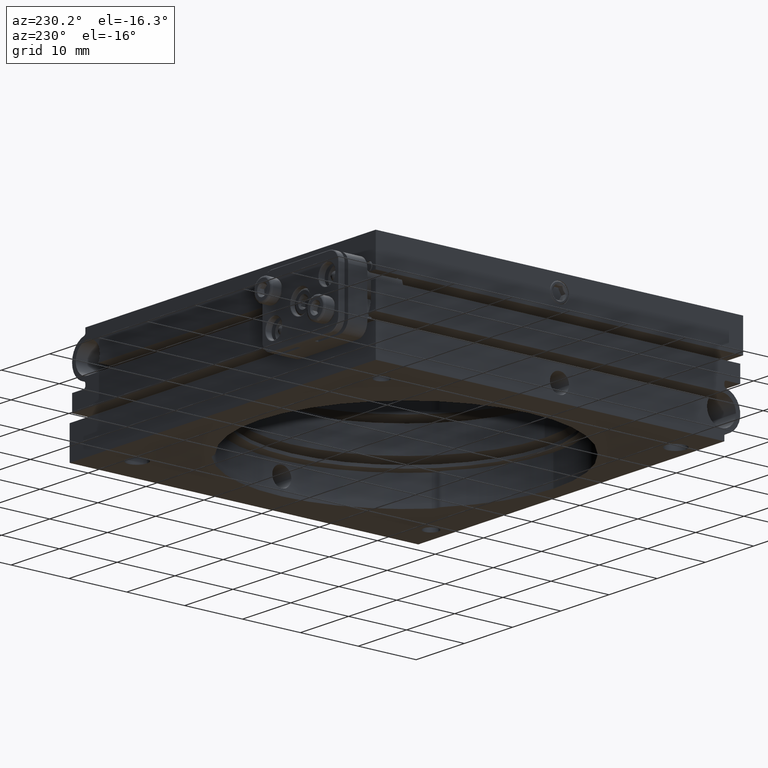
[diagram: clean part render]
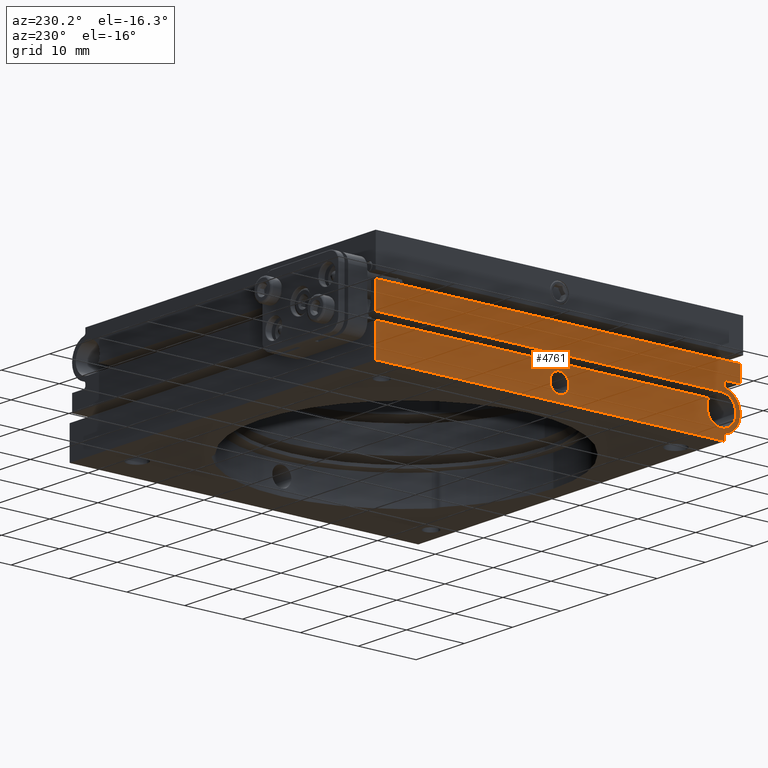
[diagram: same view with one face highlighted and labeled with its STEP entity id]
A machine part, auxiliary view. The second image highlights one B-rep face of the part: STEP entity #4761.
In plain terms, the highlighted planar face has unit normal (1, -0, 0).
Its self-contained STEP definition (entity closure, byte-faithful):
#7 = CARTESIAN_POINT ( 'NONE',  ( -31.75000000000000711, -28.00000000000000000, -4.749999999999997335 ) ) ;
#29 = VERTEX_POINT ( 'NONE', #2313 ) ;
#43 = ORIENTED_EDGE ( 'NONE', *, *, #897, .T. ) ;
#108 = ORIENTED_EDGE ( 'NONE', *, *, #5373, .F. ) ;
#119 = VERTEX_POINT ( 'NONE', #6999 ) ;
#173 = DIRECTION ( 'NONE',  ( 1.000000000000000000, -5.551115123125782702E-17, 1.232595164407830946E-32 ) ) ;
#184 = CARTESIAN_POINT ( 'NONE',  ( -31.74999999999999289, 31.74999999999999289, 8.999999999999998224 ) ) ;
#223 = CARTESIAN_POINT ( 'NONE',  ( -31.75000000000000711, -28.85000000000000142, -8.248213829942356412 ) ) ;
#225 = VECTOR ( 'NONE', #1728, 1000.000000000000000 ) ;
#333 = ORIENTED_EDGE ( 'NONE', *, *, #969, .F. ) ;
#343 = AXIS2_PLACEMENT_3D ( 'NONE', #7897, #6374, #4968 ) ;
#363 = VERTEX_POINT ( 'NONE', #571 ) ;
#397 = VERTEX_POINT ( 'NONE', #4612 ) ;
#399 = ORIENTED_EDGE ( 'NONE', *, *, #4271, .T. ) ;
#414 = CARTESIAN_POINT ( 'NONE',  ( -31.75000000000000711, -28.00000000000000000, -4.749999999999997335 ) ) ;
#476 = EDGE_CURVE ( 'NONE', #975, #839, #4586, .T. ) ;
#559 = CIRCLE ( 'NONE', #3498, 0.3499999999999996447 ) ;
#571 = CARTESIAN_POINT ( 'NONE',  ( -31.75000000000000711, -28.50000000000000000, -8.248213829942356412 ) ) ;
#598 = EDGE_CURVE ( 'NONE', #6316, #3121, #2462, .T. ) ;
#641 = ORIENTED_EDGE ( 'NONE', *, *, #6278, .F. ) ;
#651 = DIRECTION ( 'NONE',  ( 1.665334536937734811E-16, 1.000000000000000000, 0.000000000000000000 ) ) ;
#688 = CARTESIAN_POINT ( 'NONE',  ( -31.74999999999999289, 31.74999999999999289, 8.999999999999998224 ) ) ;
#711 = CARTESIAN_POINT ( 'NONE',  ( -31.75000000000000000, 1.649999999999995914, -6.249999999999998224 ) ) ;
#729 = AXIS2_PLACEMENT_3D ( 'NONE', #223, #173, #9471 ) ;
#731 = EDGE_CURVE ( 'NONE', #8923, #9159, #8302, .T. ) ;
#775 = CARTESIAN_POINT ( 'NONE',  ( -31.74999999999999289, 31.74999999999999289, -3.500000000000001332 ) ) ;
#839 = VERTEX_POINT ( 'NONE', #711 ) ;
#844 = DIRECTION ( 'NONE',  ( 1.665334536937734811E-16, 1.000000000000000000, 0.000000000000000000 ) ) ;
#859 = CARTESIAN_POINT ( 'NONE',  ( -31.75000000000000711, -28.00000000000000000, -4.749999999999997335 ) ) ;
#897 = EDGE_CURVE ( 'NONE', #9127, #363, #4181, .T. ) ;
#946 = VECTOR ( 'NONE', #8866, 1000.000000000000000 ) ;
#957 = DIRECTION ( 'NONE',  ( 0.000000000000000000, 1.000000000000000000, 0.000000000000000000 ) ) ;
#961 = CARTESIAN_POINT ( 'NONE',  ( -31.75000000000000711, -31.24999999999999289, 8.999999999999998224 ) ) ;
#969 = EDGE_CURVE ( 'NONE', #4498, #397, #7934, .T. ) ;
#975 = VERTEX_POINT ( 'NONE', #7167 ) ;
#1009 = DIRECTION ( 'NONE',  ( -1.000000000000000000, 5.551115123125782702E-17, -1.232595164407830946E-32 ) ) ;
#1287 = EDGE_LOOP ( 'NONE', ( #6902, #3081 ) ) ;
#1470 = VERTEX_POINT ( 'NONE', #5137 ) ;
#1486 = LINE ( 'NONE', #775, #8395 ) ;
#1511 = ORIENTED_EDGE ( 'NONE', *, *, #9239, .T. ) ;
#1528 = CARTESIAN_POINT ( 'NONE',  ( -31.75000000000000711, -28.50000000000000000, -1.538691855333715441 ) ) ;
#1607 = PLANE ( 'NONE',  #2078 ) ;
#1608 = AXIS2_PLACEMENT_3D ( 'NONE', #859, #1009, #957 ) ;
#1655 = FACE_BOUND ( 'NONE', #1287, .T. ) ;
#1719 = CARTESIAN_POINT ( 'NONE',  ( -31.75000000000000000, -25.83493649053891161, -3.499999999999998668 ) ) ;
#1728 = DIRECTION ( 'NONE',  ( 3.081487911019576681E-33, 5.551115123125781470E-17, 1.000000000000000000 ) ) ;
#1800 = AXIS2_PLACEMENT_3D ( 'NONE', #414, #2807, #7575 ) ;
#1917 = CARTESIAN_POINT ( 'NONE',  ( -31.75000000000000711, -28.50000000000000000, -1.251786170057636927 ) ) ;
#2078 = AXIS2_PLACEMENT_3D ( 'NONE', #184, #9240, #844 ) ;
#2124 = VERTEX_POINT ( 'NONE', #7463 ) ;
#2197 = DIRECTION ( 'NONE',  ( -1.848892746611746419E-32, 3.079024946026209384E-48, 1.000000000000000000 ) ) ;
#2247 = LINE ( 'NONE', #3835, #8993 ) ;
#2273 = LINE ( 'NONE', #688, #9785 ) ;
#2313 = CARTESIAN_POINT ( 'NONE',  ( -31.74999999999999289, 31.75000000000000000, -9.000000000000000000 ) ) ;
#2412 = CARTESIAN_POINT ( 'NONE',  ( -31.75000000000000000, 31.75000000000000000, -3.500000000000001332 ) ) ;
#2432 = ORIENTED_EDGE ( 'NONE', *, *, #3113, .T. ) ;
#2462 = CIRCLE ( 'NONE', #1800, 2.499999999999995115 ) ;
#2527 = LINE ( 'NONE', #4002, #5597 ) ;
#2657 = LINE ( 'NONE', #5769, #3546 ) ;
#2671 = LINE ( 'NONE', #3433, #946 ) ;
#2730 = EDGE_CURVE ( 'NONE', #9700, #6377, #7369, .T. ) ;
#2761 = EDGE_CURVE ( 'NONE', #9127, #29, #2527, .T. ) ;
#2807 = DIRECTION ( 'NONE',  ( -1.000000000000000000, 5.551115123125782702E-17, -1.232595164407830946E-32 ) ) ;
#2882 = EDGE_CURVE ( 'NONE', #2124, #9415, #2247, .T. ) ;
#3004 = CARTESIAN_POINT ( 'NONE',  ( -31.75000000000000711, -28.85000000000000142, -1.251786170057636927 ) ) ;
#3081 = ORIENTED_EDGE ( 'NONE', *, *, #3545, .F. ) ;
#3113 = EDGE_CURVE ( 'NONE', #3643, #119, #8697, .T. ) ;
#3121 = VERTEX_POINT ( 'NONE', #3263 ) ;
#3209 = DIRECTION ( 'NONE',  ( 3.081487911019576681E-33, 5.551115123125781470E-17, 1.000000000000000000 ) ) ;
#3238 = DIRECTION ( 'NONE',  ( 1.665334536937734811E-16, 1.000000000000000000, 0.000000000000000000 ) ) ;
#3263 = CARTESIAN_POINT ( 'NONE',  ( -31.75000000000000000, -27.99999999999999645, -2.249999999999998668 ) ) ;
#3406 = VECTOR ( 'NONE', #651, 1000.000000000000000 ) ;
#3433 = CARTESIAN_POINT ( 'NONE',  ( -31.74999999999999289, 31.74999999999999289, -0.5499999999999983791 ) ) ;
#3498 = AXIS2_PLACEMENT_3D ( 'NONE', #6260, #4748, #9353 ) ;
#3516 = ORIENTED_EDGE ( 'NONE', *, *, #7540, .F. ) ;
#3545 = EDGE_CURVE ( 'NONE', #839, #975, #7801, .T. ) ;
#3546 = VECTOR ( 'NONE', #7328, 1000.000000000000000 ) ;
#3643 = VERTEX_POINT ( 'NONE', #1917 ) ;
#3835 = CARTESIAN_POINT ( 'NONE',  ( -31.74999999999999289, 31.74999999999999289, 8.999999999999998224 ) ) ;
#3860 = VERTEX_POINT ( 'NONE', #2412 ) ;
#3936 = ORIENTED_EDGE ( 'NONE', *, *, #4324, .T. ) ;
#3951 = ORIENTED_EDGE ( 'NONE', *, *, #5459, .F. ) ;
#4002 = CARTESIAN_POINT ( 'NONE',  ( -31.74999999999999289, 31.74999999999999289, -8.999999999999998224 ) ) ;
#4181 = LINE ( 'NONE', #6313, #9916 ) ;
#4271 = EDGE_CURVE ( 'NONE', #4498, #9415, #2657, .T. ) ;
#4302 = CARTESIAN_POINT ( 'NONE',  ( -31.75000000000000711, -30.49999999999999645, -4.749999999999997335 ) ) ;
#4306 = CARTESIAN_POINT ( 'NONE',  ( -31.75000000000000000, 31.75000000000000000, 2.249999999999996891 ) ) ;
#4324 = EDGE_CURVE ( 'NONE', #9700, #3643, #7430, .T. ) ;
#4328 = CARTESIAN_POINT ( 'NONE',  ( -31.75000000000000711, -31.25000000000000000, 2.250000000000000444 ) ) ;
#4498 = VERTEX_POINT ( 'NONE', #4328 ) ;
#4548 = CARTESIAN_POINT ( 'NONE',  ( -31.74999999999999289, 31.74999999999999289, -2.249999999999998668 ) ) ;
#4586 = CIRCLE ( 'NONE', #343, 1.649999999999997691 ) ;
#4612 = CARTESIAN_POINT ( 'NONE',  ( -31.75000000000000711, -31.24999999999998934, -0.5499999999999972689 ) ) ;
#4748 = DIRECTION ( 'NONE',  ( 1.000000000000000000, -5.551115123125782702E-17, 1.232595164407830946E-32 ) ) ;
#4753 = DIRECTION ( 'NONE',  ( -1.000000000000000000, 5.551115123125782702E-17, -1.232595164407830946E-32 ) ) ;
#4761 = ADVANCED_FACE ( 'NONE', ( #1655, #9386 ), #1607, .F. ) ;
#4780 = DIRECTION ( 'NONE',  ( 1.000000000000000000, -5.551115123125782702E-17, 1.232595164407830946E-32 ) ) ;
#4814 = CARTESIAN_POINT ( 'NONE',  ( -31.75000000000000711, -28.76736111111111072, -1.591890292413144614 ) ) ;
#4968 = DIRECTION ( 'NONE',  ( 0.000000000000000000, -1.000000000000000000, 0.000000000000000000 ) ) ;
#4985 = CIRCLE ( 'NONE', #729, 0.3499999999999996447 ) ;
#5028 = ORIENTED_EDGE ( 'NONE', *, *, #598, .F. ) ;
#5137 = CARTESIAN_POINT ( 'NONE',  ( -31.75000000000000000, -28.85000000000000497, -0.5499999999999982681 ) ) ;
#5357 = DIRECTION ( 'NONE',  ( 0.000000000000000000, 1.000000000000000000, -1.422473250300984657E-14 ) ) ;
#5373 = EDGE_CURVE ( 'NONE', #3121, #2124, #6009, .T. ) ;
#5427 = DIRECTION ( 'NONE',  ( -1.665334536937734811E-16, -1.000000000000000000, -0.000000000000000000 ) ) ;
#5459 = EDGE_CURVE ( 'NONE', #9159, #6316, #9078, .T. ) ;
#5535 = DIRECTION ( 'NONE',  ( 0.000000000000000000, 1.000000000000000000, 0.000000000000000000 ) ) ;
#5597 = VECTOR ( 'NONE', #3238, 1000.000000000000000 ) ;
#5769 = CARTESIAN_POINT ( 'NONE',  ( -31.75000000000000711, -31.75000000000000711, 2.250000000000000888 ) ) ;
#6009 = LINE ( 'NONE', #4548, #3406 ) ;
#6024 = ORIENTED_EDGE ( 'NONE', *, *, #8885, .T. ) ;
#6260 = CARTESIAN_POINT ( 'NONE',  ( -31.75000000000000711, -28.85000000000000142, -0.8999999999999981348 ) ) ;
#6278 = EDGE_CURVE ( 'NONE', #397, #1470, #2671, .T. ) ;
#6313 = CARTESIAN_POINT ( 'NONE',  ( -31.75000000000000711, -28.50000000000000000, -7.961308144666279674 ) ) ;
#6316 = VERTEX_POINT ( 'NONE', #4302 ) ;
#6374 = DIRECTION ( 'NONE',  ( -1.000000000000000000, 5.551115123125782702E-17, -1.232595164407830946E-32 ) ) ;
#6377 = VERTEX_POINT ( 'NONE', #8422 ) ;
#6612 = ORIENTED_EDGE ( 'NONE', *, *, #2882, .F. ) ;
#6716 = DIRECTION ( 'NONE',  ( 1.000000000000000000, -5.551115123125782702E-17, 1.232595164407830946E-32 ) ) ;
#6759 = EDGE_CURVE ( 'NONE', #3860, #8923, #1486, .T. ) ;
#6902 = ORIENTED_EDGE ( 'NONE', *, *, #476, .F. ) ;
#6999 = CARTESIAN_POINT ( 'NONE',  ( -31.75000000000000711, -28.50000000000000000, -0.8999999999999981348 ) ) ;
#7019 = VECTOR ( 'NONE', #8693, 1000.000000000000000 ) ;
#7047 = CARTESIAN_POINT ( 'NONE',  ( -31.75000000000000711, -25.50000000000000355, -4.749999999999997335 ) ) ;
#7112 = DIRECTION ( 'NONE',  ( 0.000000000000000000, -1.000000000000000000, 0.000000000000000000 ) ) ;
#7151 = AXIS2_PLACEMENT_3D ( 'NONE', #9395, #8631, #7112 ) ;
#7167 = CARTESIAN_POINT ( 'NONE',  ( -31.75000000000000000, -1.649999999999999467, -6.249999999999998224 ) ) ;
#7211 = AXIS2_PLACEMENT_3D ( 'NONE', #8619, #4780, #5535 ) ;
#7212 = ORIENTED_EDGE ( 'NONE', *, *, #2730, .F. ) ;
#7328 = DIRECTION ( 'NONE',  ( 0.000000000000000000, 1.000000000000000000, -5.551115123125781470E-17 ) ) ;
#7369 = CIRCLE ( 'NONE', #7211, 3.249999999999999556 ) ;
#7430 = CIRCLE ( 'NONE', #9220, 0.3499999999999996447 ) ;
#7463 = CARTESIAN_POINT ( 'NONE',  ( -31.74999999999999289, 31.75000000000000000, -2.250000000000000000 ) ) ;
#7540 = EDGE_CURVE ( 'NONE', #29, #3860, #2273, .T. ) ;
#7570 = DIRECTION ( 'NONE',  ( 0.000000000000000000, 1.000000000000000000, 0.000000000000000000 ) ) ;
#7575 = DIRECTION ( 'NONE',  ( 0.000000000000000000, 1.000000000000000000, -1.040834085586086229E-15 ) ) ;
#7801 = CIRCLE ( 'NONE', #7151, 1.649999999999997691 ) ;
#7897 = CARTESIAN_POINT ( 'NONE',  ( -31.75000000000000000, -2.053912595556539205E-15, -6.249999999999998224 ) ) ;
#7934 = LINE ( 'NONE', #961, #7019 ) ;
#8302 = CIRCLE ( 'NONE', #9912, 2.499999999999995115 ) ;
#8370 = ORIENTED_EDGE ( 'NONE', *, *, #6759, .F. ) ;
#8395 = VECTOR ( 'NONE', #5427, 1000.000000000000000 ) ;
#8422 = CARTESIAN_POINT ( 'NONE',  ( -31.75000000000000711, -28.76736111111111072, -7.908109707586850057 ) ) ;
#8474 = ORIENTED_EDGE ( 'NONE', *, *, #731, .F. ) ;
#8614 = CARTESIAN_POINT ( 'NONE',  ( -31.75000000000000000, -28.50000000000000000, -8.999999999999998224 ) ) ;
#8619 = CARTESIAN_POINT ( 'NONE',  ( -31.75000000000000711, -28.00000000000000000, -4.749999999999997335 ) ) ;
#8622 = DIRECTION ( 'NONE',  ( -1.848892746611746419E-32, 3.079024946026209384E-48, 1.000000000000000000 ) ) ;
#8631 = DIRECTION ( 'NONE',  ( -1.000000000000000000, 5.551115123125782702E-17, -1.232595164407830946E-32 ) ) ;
#8693 = DIRECTION ( 'NONE',  ( 1.848892746611746419E-32, -3.079024946026209384E-48, -1.000000000000000000 ) ) ;
#8697 = LINE ( 'NONE', #1528, #225 ) ;
#8866 = DIRECTION ( 'NONE',  ( 1.665334536937734811E-16, 1.000000000000000000, 0.000000000000000000 ) ) ;
#8885 = EDGE_CURVE ( 'NONE', #119, #1470, #559, .T. ) ;
#8923 = VERTEX_POINT ( 'NONE', #1719 ) ;
#8993 = VECTOR ( 'NONE', #2197, 1000.000000000000000 ) ;
#9078 = CIRCLE ( 'NONE', #1608, 2.499999999999995115 ) ;
#9127 = VERTEX_POINT ( 'NONE', #8614 ) ;
#9159 = VERTEX_POINT ( 'NONE', #7047 ) ;
#9220 = AXIS2_PLACEMENT_3D ( 'NONE', #3004, #6716, #7570 ) ;
#9239 = EDGE_CURVE ( 'NONE', #363, #6377, #4985, .T. ) ;
#9240 = DIRECTION ( 'NONE',  ( 1.000000000000000000, -1.665334536937734811E-16, 1.848892746611746419E-32 ) ) ;
#9339 = EDGE_LOOP ( 'NONE', ( #333, #399, #6612, #108, #5028, #3951, #8474, #8370, #3516, #9969, #43, #1511, #7212, #3936, #2432, #6024, #641 ) ) ;
#9353 = DIRECTION ( 'NONE',  ( 0.000000000000000000, -1.000000000000000000, 0.000000000000000000 ) ) ;
#9386 = FACE_OUTER_BOUND ( 'NONE', #9339, .T. ) ;
#9395 = CARTESIAN_POINT ( 'NONE',  ( -31.75000000000000000, -2.053912595556539205E-15, -6.249999999999998224 ) ) ;
#9415 = VERTEX_POINT ( 'NONE', #4306 ) ;
#9471 = DIRECTION ( 'NONE',  ( 0.000000000000000000, 1.000000000000000000, 0.000000000000000000 ) ) ;
#9700 = VERTEX_POINT ( 'NONE', #4814 ) ;
#9785 = VECTOR ( 'NONE', #8622, 1000.000000000000000 ) ;
#9912 = AXIS2_PLACEMENT_3D ( 'NONE', #7, #4753, #5357 ) ;
#9916 = VECTOR ( 'NONE', #3209, 1000.000000000000000 ) ;
#9969 = ORIENTED_EDGE ( 'NONE', *, *, #2761, .F. ) ;